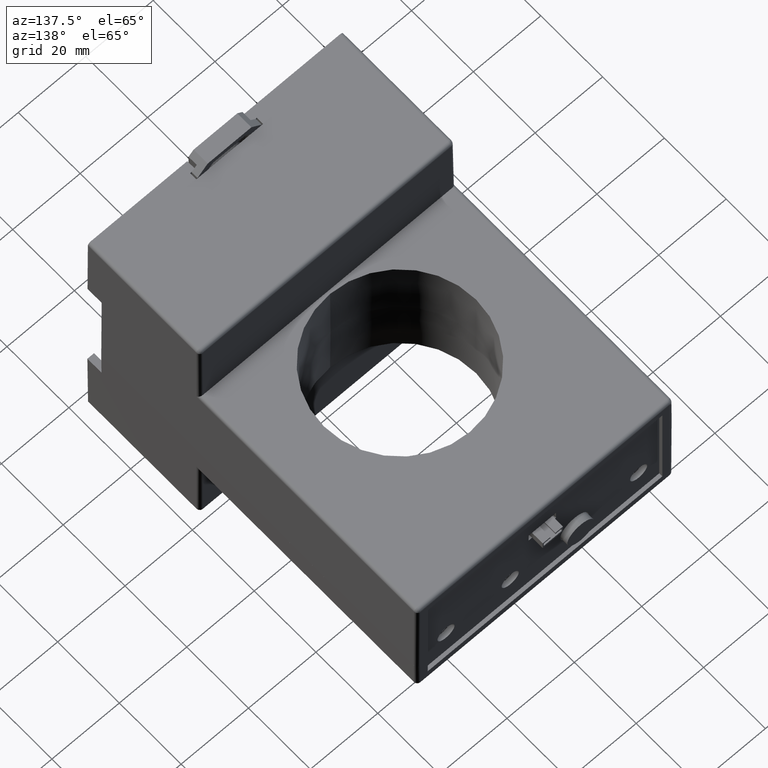
[diagram: clean part render]
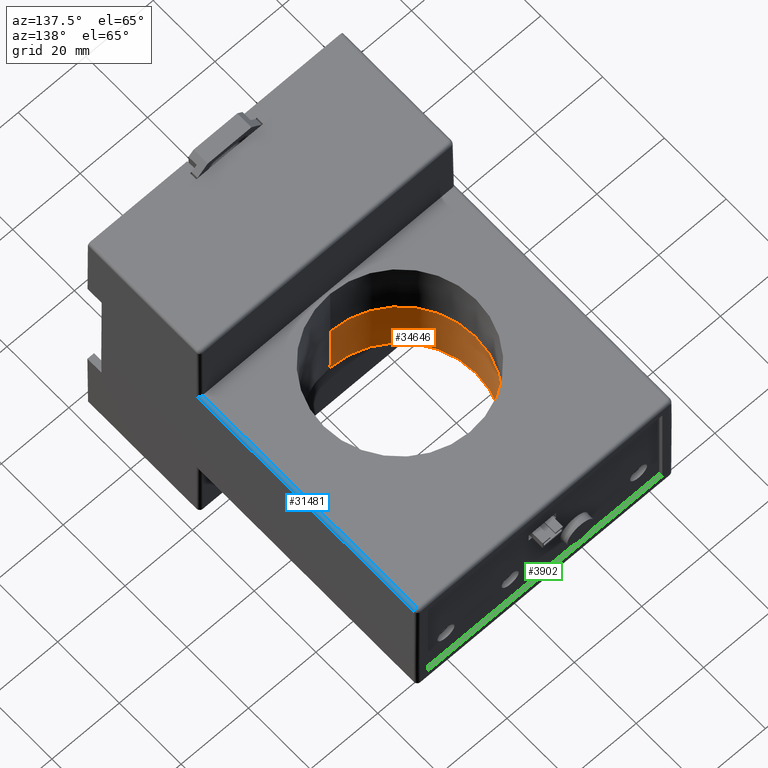
[diagram: same view with three faces highlighted in distinct colors, each labeled with its STEP entity id]
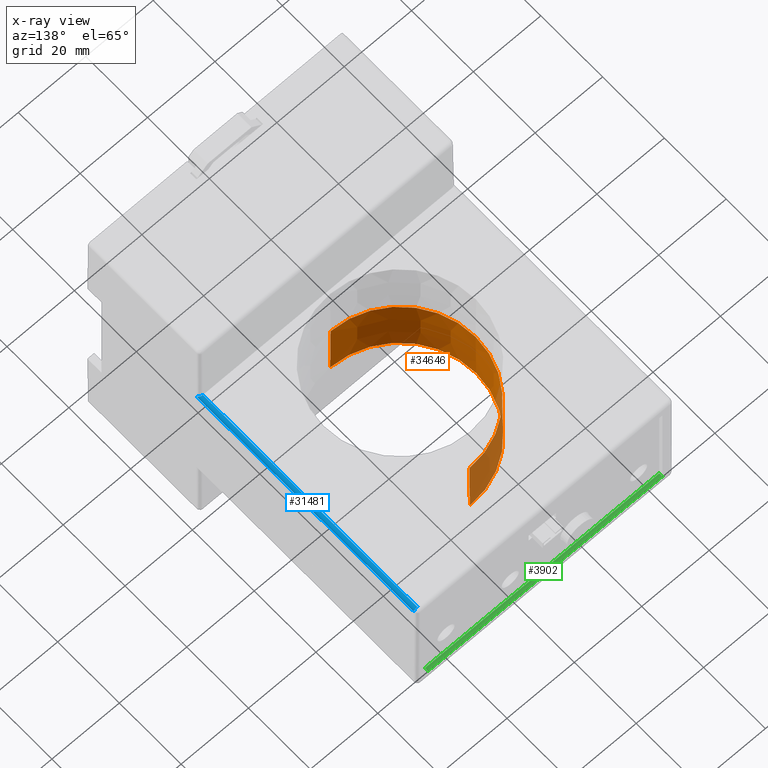
[diagram: x-ray of the same camera — body ghosted, the three highlighted faces saturated]
A machine part, auxiliary view with three faces highlighted in distinct colors.
The next image is the same camera in x-ray (body ghosted, the three faces saturated) — at least one of them is partly hidden behind the body in this view.
Their STEP definitions:

[orange] entity #34646 — the highlighted conical surface has half-angle 0.5 deg.
#1155 = FACE_OUTER_BOUND ( 'NONE', #7006, .T. ) ;
#1364 = AXIS2_PLACEMENT_3D ( 'NONE', #28387, #20750, #1743 ) ;
#1743 = DIRECTION ( 'NONE',  ( 0.000000000000000000, 1.000000000000000000, 0.000000000000000000 ) ) ;
#1891 = AXIS2_PLACEMENT_3D ( 'NONE', #9511, #22809, #23174 ) ;
#1937 = EDGE_CURVE ( 'NONE', #34089, #18362, #31605, .T. ) ;
#3881 = EDGE_CURVE ( 'NONE', #34089, #26544, #22416, .T. ) ;
#4968 = CARTESIAN_POINT ( 'NONE',  ( 0.001330692535681425289, 0.2375644801733747813, -0.7500000000000354161 ) ) ;
#6729 = DIRECTION ( 'NONE',  ( 1.068692402194675476E-18, -0.008726535707591374924, -0.9999619230623453259 ) ) ;
#7006 = EDGE_LOOP ( 'NONE', ( #13712, #27135, #22607, #33682 ) ) ;
#7108 = AXIS2_PLACEMENT_3D ( 'NONE', #15885, #19237, #21390 ) ;
#8750 = VECTOR ( 'NONE', #6729, 39.37007874015748854 ) ;
#9391 = LINE ( 'NONE', #31065, #8750 ) ;
#9511 = CARTESIAN_POINT ( 'NONE',  ( 0.001330692535681425289, -0.6462937878266260538, -0.7500000000000354161 ) ) ;
#13712 = ORIENTED_EDGE ( 'NONE', *, *, #3881, .T. ) ;
#15798 = DIRECTION ( 'NONE',  ( 0.000000000000000000, 0.008726535707591213595, -0.9999619230623453259 ) ) ;
#15885 = CARTESIAN_POINT ( 'NONE',  ( 0.001330692535681425289, -0.6462937878266260538, -0.7500000000000375255 ) ) ;
#16657 = VECTOR ( 'NONE', #15798, 39.37007874015748854 ) ;
#18362 = VERTEX_POINT ( 'NONE', #20366 ) ;
#18841 = CARTESIAN_POINT ( 'NONE',  ( 0.001330692535681425289, -1.530152055826625945, -0.7500000000000375255 ) ) ;
#19237 = DIRECTION ( 'NONE',  ( 0.000000000000000000, 1.545410668526019934E-16, 1.000000000000000000 ) ) ;
#20366 = CARTESIAN_POINT ( 'NONE',  ( 0.001330692535681425289, 0.2441096311733744195, -1.500000000000037526 ) ) ;
#20750 = DIRECTION ( 'NONE',  ( 0.000000000000000000, -7.670253548476839358E-17, -1.000000000000000000 ) ) ;
#21390 = DIRECTION ( 'NONE',  ( 0.000000000000000000, 1.000000000000000000, -1.545410668526021414E-16 ) ) ;
#22416 = CIRCLE ( 'NONE', #7108, 0.8838582680000001135 ) ;
#22607 = ORIENTED_EDGE ( 'NONE', *, *, #30024, .T. ) ;
#22809 = DIRECTION ( 'NONE',  ( 0.000000000000000000, -1.545410668526019934E-16, -1.000000000000000000 ) ) ;
#23174 = DIRECTION ( 'NONE',  ( 0.000000000000000000, 1.000000000000000000, -1.545410668526021414E-16 ) ) ;
#23255 = CARTESIAN_POINT ( 'NONE',  ( 0.001330692535681425289, -1.536697206826626250, -1.500000000000037526 ) ) ;
#23441 = CONICAL_SURFACE ( 'NONE', #1891, 0.8838582680000001135, 0.008726646469201513809 ) ;
#25162 = EDGE_CURVE ( 'NONE', #26544, #33391, #9391, .T. ) ;
#26544 = VERTEX_POINT ( 'NONE', #18841 ) ;
#27135 = ORIENTED_EDGE ( 'NONE', *, *, #25162, .T. ) ;
#27847 = CARTESIAN_POINT ( 'NONE',  ( 0.001330692535681425289, 0.2375644801733747813, -0.7500000000000375255 ) ) ;
#28387 = CARTESIAN_POINT ( 'NONE',  ( 0.001330692535681425289, -0.6462937878266260538, -1.500000000000037526 ) ) ;
#30024 = EDGE_CURVE ( 'NONE', #33391, #18362, #33697, .T. ) ;
#31065 = CARTESIAN_POINT ( 'NONE',  ( 0.001330692535681425289, -1.530152055826625945, -0.7500000000000354161 ) ) ;
#31605 = LINE ( 'NONE', #4968, #16657 ) ;
#33391 = VERTEX_POINT ( 'NONE', #23255 ) ;
#33682 = ORIENTED_EDGE ( 'NONE', *, *, #1937, .F. ) ;
#33697 = CIRCLE ( 'NONE', #1364, 0.8904034189999999738 ) ;
#34089 = VERTEX_POINT ( 'NONE', #27847 ) ;
#34646 = ADVANCED_FACE ( 'NONE', ( #1155 ), #23441, .F. ) ;

[blue] entity #31481 — the highlighted cylindrical surface (edge-blend (fillet) strip) has radius 1 mm, axis along (0, 1, 0).
#131 = CARTESIAN_POINT ( 'NONE',  ( 1.484444940856047834, 1.164336302024646663, -0.01092595249874168430 ) ) ;
#360 = ORIENTED_EDGE ( 'NONE', *, *, #18913, .T. ) ;
#367 = ORIENTED_EDGE ( 'NONE', *, *, #8223, .F. ) ;
#467 = CYLINDRICAL_SURFACE ( 'NONE', #12796, 0.03937007900000000227 ) ;
#485 = ORIENTED_EDGE ( 'NONE', *, *, #1388, .F. ) ;
#661 = CARTESIAN_POINT ( 'NONE',  ( 1.496593678547291528, 1.164336082172895637, -0.03919829190969988109 ) ) ;
#1034 = CARTESIAN_POINT ( 'NONE',  ( 1.496568194164836774, 1.164336082090621227, -0.03352269004800088187 ) ) ;
#1199 = CARTESIAN_POINT ( 'NONE',  ( 1.493732530525202717, 1.164336082997573518, -0.02463604005185262777 ) ) ;
#1365 = CARTESIAN_POINT ( 'NONE',  ( 1.493631023974575811, 1.164336096254789066, -0.02438621489670914078 ) ) ;
#1388 = EDGE_CURVE ( 'NONE', #20201, #3164, #12426, .T. ) ;
#2462 = CARTESIAN_POINT ( 'NONE',  ( 1.473332372030457194, 1.164335901163281006, -0.003402666639727246374 ) ) ;
#2796 = CARTESIAN_POINT ( 'NONE',  ( 1.457223255535681217, -1.624317908826625967, -0.03937007900001086164 ) ) ;
#3164 = VERTEX_POINT ( 'NONE', #30324 ) ;
#3175 = CARTESIAN_POINT ( 'NONE',  ( 1.464169413759737193, 1.164336365295956188, -0.0006174781700562674341 ) ) ;
#3252 = CARTESIAN_POINT ( 'NONE',  ( 1.485002436265358439, -1.580146867309736303, -0.01147163243199506022 ) ) ;
#3330 = VERTEX_POINT ( 'NONE', #22523 ) ;
#3420 = CARTESIAN_POINT ( 'NONE',  ( 1.476493194752162452, -1.573348139762933418, -0.004677798566891992055 ) ) ;
#3633 = VECTOR ( 'NONE', #11294, 39.37007874015748143 ) ;
#4006 = EDGE_CURVE ( 'NONE', #20201, #27351, #22013, .T. ) ;
#5138 = CARTESIAN_POINT ( 'NONE',  ( 1.463677681557393084, 1.164338849962114786, -0.0005318053292256911917 ) ) ;
#5379 = CARTESIAN_POINT ( 'NONE',  ( 1.492387291975863617, -1.590263892925139588, -0.02164219658270928603 ) ) ;
#5721 = CARTESIAN_POINT ( 'NONE',  ( 1.494781917686651473, -1.595630264915548491, -0.02704454284038275078 ) ) ;
#6183 = CARTESIAN_POINT ( 'NONE',  ( 1.457194806560365929, -0.6576589748279371150, -7.709014693006753181E-09 ) ) ;
#7968 = CARTESIAN_POINT ( 'NONE',  ( 1.468140588614240460, 1.164343922043954205, -0.001538683563074706544 ) ) ;
#8035 = CARTESIAN_POINT ( 'NONE',  ( 1.488156840219140298, -1.583553193721103591, -0.01488835899285428747 ) ) ;
#8131 = CARTESIAN_POINT ( 'NONE',  ( 1.483412060711580827, 1.164337723560614268, -0.009970658415837954647 ) ) ;
#8223 = EDGE_CURVE ( 'NONE', #31862, #3330, #8270, .T. ) ;
#8261 = CARTESIAN_POINT ( 'NONE',  ( 1.457180593343850417, -1.568655253667370131, 2.122863892547027749E-08 ) ) ;
#8270 = LINE ( 'NONE', #16592, #3633 ) ;
#8333 = CARTESIAN_POINT ( 'NONE',  ( 1.471297920332168774, 1.164336309284034643, -0.002601651153396351140 ) ) ;
#8566 = CARTESIAN_POINT ( 'NONE',  ( 1.467232212975850159, -1.569634801595313656, -0.0009681825622313167817 ) ) ;
#8657 = CARTESIAN_POINT ( 'NONE',  ( 1.464314858757750359, 1.164336102209431401, -0.0006439194034313916589 ) ) ;
#8844 = CARTESIAN_POINT ( 'NONE',  ( 1.495282912126592922, 1.164336049566649711, -0.02851357579597748465 ) ) ;
#9374 = CARTESIAN_POINT ( 'NONE',  ( 1.491127663774093337, 1.164337858732516384, -0.01930369316991986314 ) ) ;
#9673 = B_SPLINE_CURVE_WITH_KNOTS ( 'NONE', 3,
 ( #22164, #26977, #19172, #30004, #32997, #16653, #27489, #24651, #5138, #13661, #3175, #8657, #10664, #13815, #7968, #16336, #15966, #18809, #26793, #8333, #29639, #24471, #2462, #13510, #24319, #35163, #10826, #21639, #8131, #27158, #131, #10988, #21815, #32664, #27312, #30686, #33360, #9374, #22695, #33698, #25001, #33528, #1365, #1199, #8844, #1034, #661 ),
 .UNSPECIFIED., .F., .F.,
 ( 4, 2, 2, 2, 1, 2, 2, 2, 2, 1, 1, 2, 2, 2, 2, 2, 1, 1, 2, 2, 2, 2, 1, 1, 2, 2, 4 ),
 ( 0.000000000000000000, 0.06250000000001339207, 0.09375000000001249001, 0.1093750000000182354, 0.1171875000000210942, 0.1210937500000278666, 0.1250000000000346390, 0.1875000000000314471, 0.2187500000000298650, 0.2343750000000290601, 0.2421875000000286715, 0.2460937500000284772, 0.2500000000000282552, 0.3749999999999323319, 0.4374999999998844258, 0.4687499999998561151, 0.4843749999998458455, 0.4921874999998370748, 0.4960937499998326894, 0.4999999999998283040, 0.6249999999998372413, 0.6874999999998381295, 0.7187499999998412381, 0.7343749999998427924, 0.7421874999998436806, 0.7499999999998445688, 1.000000000000000000 ),
 .UNSPECIFIED. ) ;
#10664 = CARTESIAN_POINT ( 'NONE',  ( 1.465258436425645350, 1.164335763650295785, -0.0008181075057925150679 ) ) ;
#10826 = CARTESIAN_POINT ( 'NONE',  ( 1.481833284021740971, 1.164341277177371348, -0.008629853075344938451 ) ) ;
#10988 = CARTESIAN_POINT ( 'NONE',  ( 1.484683431391089936, 1.164336166238325365, -0.01115741913064214989 ) ) ;
#11068 = CARTESIAN_POINT ( 'NONE',  ( 1.493104402381204565, -1.591776753127178923, -0.02316590488884485641 ) ) ;
#11294 = DIRECTION ( 'NONE',  ( 0.000000000000000000, -1.000000000000000000, 0.000000000000000000 ) ) ;
#11413 = CARTESIAN_POINT ( 'NONE',  ( 1.481055440325588446, -1.576233271973137562, -0.007541565141152646069 ) ) ;
#12426 = B_SPLINE_CURVE_WITH_KNOTS ( 'NONE', 3,
 ( #30526, #6183, #28210, #16859 ),
 .UNSPECIFIED., .F., .F.,
 ( 4, 4 ),
 ( 1.321415185193150075E-06, 1.000000000000000000 ),
 .UNSPECIFIED. ) ;
#12796 = AXIS2_PLACEMENT_3D ( 'NONE', #2796, #30122, #16460 ) ;
#12817 = ORIENTED_EDGE ( 'NONE', *, *, #4006, .T. ) ;
#13083 = EDGE_CURVE ( 'NONE', #3164, #31862, #9673, .T. ) ;
#13510 = CARTESIAN_POINT ( 'NONE',  ( 1.475347506262966180, 1.164347809394013833, -0.004318343193038460745 ) ) ;
#13511 = EDGE_LOOP ( 'NONE', ( #29632, #485, #12817, #360, #367 ) ) ;
#13571 = CARTESIAN_POINT ( 'NONE',  ( 1.490291180145886241, -1.586615342699232212, -0.01796739175534824498 ) ) ;
#13661 = CARTESIAN_POINT ( 'NONE',  ( 1.463971504965505543, 1.164337170884090833, -0.0005825254059104340324 ) ) ;
#13815 = CARTESIAN_POINT ( 'NONE',  ( 1.466310275670424046, 1.164343701896781047, -0.001042183614834326809 ) ) ;
#14082 = CARTESIAN_POINT ( 'NONE',  ( 1.492894277748572751, -1.591317345333462807, -0.02270330650370533734 ) ) ;
#15966 = CARTESIAN_POINT ( 'NONE',  ( 1.469830920037761501, 1.164339613599384426, -0.002071519253975040182 ) ) ;
#16223 = CARTESIAN_POINT ( 'NONE',  ( 1.486606436149681576, -1.581737274033285789, -0.01306883046222464227 ) ) ;
#16336 = CARTESIAN_POINT ( 'NONE',  ( 1.468792468772047055, 1.164342522204183661, -0.001731174721391769275 ) ) ;
#16460 = DIRECTION ( 'NONE',  ( -6.938893858110528570E-15, 0.000000000000000000, -1.000000000000000000 ) ) ;
#16592 = CARTESIAN_POINT ( 'NONE',  ( 1.496592959168775439, -0.9034885178266259809, -0.03919829468800295480 ) ) ;
#16653 = CARTESIAN_POINT ( 'NONE',  ( 1.462480213282318697, 1.164350987327279929, -0.0003510526486788086652 ) ) ;
#16747 = CARTESIAN_POINT ( 'NONE',  ( 1.462169781860694462, -1.568670453387173591, 5.383265063202990374E-06 ) ) ;
#16859 = CARTESIAN_POINT ( 'NONE',  ( 1.457223255261008044, 1.164336082238254022, -8.780214088596811020E-11 ) ) ;
#18809 = CARTESIAN_POINT ( 'NONE',  ( 1.470365272563824766, 1.164338004012003491, -0.002254617985095569779 ) ) ;
#18913 = EDGE_CURVE ( 'NONE', #27351, #3330, #33033, .T. ) ;
#19172 = CARTESIAN_POINT ( 'NONE',  ( 1.459169575941745789, 1.164337722414892529, -3.215656258399416262E-05 ) ) ;
#19574 = CARTESIAN_POINT ( 'NONE',  ( 1.490970520294329971, -1.587692437266342349, -0.01905175382725271885 ) ) ;
#20201 = VERTEX_POINT ( 'NONE', #8261 ) ;
#21639 = CARTESIAN_POINT ( 'NONE',  ( 1.482462375198591920, 1.164339663350864695, -0.009142683695595624910 ) ) ;
#21815 = CARTESIAN_POINT ( 'NONE',  ( 1.484842395458790598, 1.164336103028245528, -0.01131302027017613496 ) ) ;
#21897 = CARTESIAN_POINT ( 'NONE',  ( 1.493334981465455069, -1.592294375669335516, -0.02368701026072725715 ) ) ;
#22013 = B_SPLINE_CURVE_WITH_KNOTS ( 'NONE', 3,
 ( #33068, #16747, #8566, #3420, #11413, #22230 ),
 .UNSPECIFIED., .F., .F.,
 ( 4, 2, 4 ),
 ( 0.000000000000000000, 0.5000000000000000000, 1.000000000000000000 ),
 .UNSPECIFIED. ) ;
#22164 = CARTESIAN_POINT ( 'NONE',  ( 1.457223255261008044, 1.164336082238254022, -8.780214088596811020E-11 ) ) ;
#22230 = CARTESIAN_POINT ( 'NONE',  ( 1.485002436265358439, -1.580146867309736303, -0.01147163243199506022 ) ) ;
#22523 = CARTESIAN_POINT ( 'NONE',  ( 1.496592087636614110, -1.607685777358805135, -0.03919829871860153192 ) ) ;
#22695 = CARTESIAN_POINT ( 'NONE',  ( 1.492180237719931357, 1.164337046839520218, -0.02124402399814831824 ) ) ;
#24319 = CARTESIAN_POINT ( 'NONE',  ( 1.478768020175549314, 1.164347901671580754, -0.006391245212084641775 ) ) ;
#24471 = CARTESIAN_POINT ( 'NONE',  ( 1.471628515517873881, 1.164336087910295969, -0.002730010109602866008 ) ) ;
#24651 = CARTESIAN_POINT ( 'NONE',  ( 1.463392968122608329, 1.164341479879629215, -0.0004859814918897872784 ) ) ;
#24904 = CARTESIAN_POINT ( 'NONE',  ( 1.496562329060563634, -1.600727036294399941, -0.03217831075050450740 ) ) ;
#25001 = CARTESIAN_POINT ( 'NONE',  ( 1.493248868338005186, 1.164336232438409002, -0.02348217840189761527 ) ) ;
#26225 = CARTESIAN_POINT ( 'NONE',  ( 1.485002436265358439, -1.580146867309736303, -0.01147163243199506022 ) ) ;
#26793 = CARTESIAN_POINT ( 'NONE',  ( 1.471014353651835194, 1.164336656061969455, -0.002493534695558339599 ) ) ;
#26977 = CARTESIAN_POINT ( 'NONE',  ( 1.458192111147310843, 1.164336424206825482, -4.567141000888969781E-10 ) ) ;
#27052 = CARTESIAN_POINT ( 'NONE',  ( 1.496592087636614110, -1.607685777358805135, -0.03919829871860153192 ) ) ;
#27073 = CARTESIAN_POINT ( 'NONE',  ( 1.496593678547291528, 1.164336082172895637, -0.03919829190969988109 ) ) ;
#27158 = CARTESIAN_POINT ( 'NONE',  ( 1.483888395109060676, 1.164336878052493862, -0.01039931844659884932 ) ) ;
#27220 = CARTESIAN_POINT ( 'NONE',  ( 1.493242851598405974, -1.592084786809689678, -0.02347603429599900288 ) ) ;
#27312 = CARTESIAN_POINT ( 'NONE',  ( 1.486504075081615195, 1.164336026264555235, -0.01296678958549814416 ) ) ;
#27351 = VERTEX_POINT ( 'NONE', #26225 ) ;
#27489 = CARTESIAN_POINT ( 'NONE',  ( 1.462835632459535296, 1.164347013865487002, -0.0004002762344872486566 ) ) ;
#28210 = CARTESIAN_POINT ( 'NONE',  ( 1.457209031056098336, 0.2533385536727173482, -6.829619984160649566E-15 ) ) ;
#29632 = ORIENTED_EDGE ( 'NONE', *, *, #13083, .F. ) ;
#29639 = CARTESIAN_POINT ( 'NONE',  ( 1.471488149110296018, 1.164336143288523973, -0.002675034558236506679 ) ) ;
#29711 = CARTESIAN_POINT ( 'NONE',  ( 1.491925686799903783, -1.589392646478607674, -0.02076439011648212665 ) ) ;
#30004 = CARTESIAN_POINT ( 'NONE',  ( 1.460846246940382454, 1.164357464308185319, -0.0001630532174326378386 ) ) ;
#30122 = DIRECTION ( 'NONE',  ( 0.000000000000000000, 1.000000000000000000, 0.000000000000000000 ) ) ;
#30324 = CARTESIAN_POINT ( 'NONE',  ( 1.457223255261008044, 1.164336082238254022, -8.780214088596811020E-11 ) ) ;
#30526 = CARTESIAN_POINT ( 'NONE',  ( 1.457180593343850417, -1.568655253667370131, 2.122863892547027749E-08 ) ) ;
#30686 = CARTESIAN_POINT ( 'NONE',  ( 1.488096004389228177, 1.164338215945144084, -0.01479207996357708929 ) ) ;
#31481 = ADVANCED_FACE ( 'NONE', ( #32621 ), #467, .T. ) ;
#31862 = VERTEX_POINT ( 'NONE', #27073 ) ;
#32621 = FACE_OUTER_BOUND ( 'NONE', #13511, .T. ) ;
#32664 = CARTESIAN_POINT ( 'NONE',  ( 1.484954341796474786, 1.164336083866912119, -0.01142380356697737277 ) ) ;
#32997 = CARTESIAN_POINT ( 'NONE',  ( 1.461461445694123285, 1.164358803071727566, -0.0002228065801303327504 ) ) ;
#33033 = B_SPLINE_CURVE_WITH_KNOTS ( 'NONE', 3,
 ( #3252, #16223, #8035, #13571, #19574, #29711, #5379, #14082, #11068, #27220, #21897, #5721, #24904, #27052 ),
 .UNSPECIFIED., .F., .F.,
 ( 4, 2, 2, 1, 1, 2, 2, 4 ),
 ( 0.000000000000000000, 0.2499999999999545919, 0.3749999999999318878, 0.4374999999999205080, 0.4687499999999148459, 0.4843749999999119038, 0.4999999999999089617, 1.000000000000000000 ),
 .UNSPECIFIED. ) ;
#33068 = CARTESIAN_POINT ( 'NONE',  ( 1.457180593343850417, -1.568655253667370131, 2.122863892547027749E-08 ) ) ;
#33360 = CARTESIAN_POINT ( 'NONE',  ( 1.490383179985958373, 1.164338256390982318, -0.01810454674448271073 ) ) ;
#33528 = CARTESIAN_POINT ( 'NONE',  ( 1.493479397014053189, 1.164336139796309233, -0.02402296228519383917 ) ) ;
#33698 = CARTESIAN_POINT ( 'NONE',  ( 1.492690421932249434, 1.164336600328926163, -0.02224944349140584379 ) ) ;
#35163 = CARTESIAN_POINT ( 'NONE',  ( 1.479972475108672914, 1.164345700549807683, -0.007199847623886168960 ) ) ;

[green] entity #3902 — the highlighted planar face has unit normal (0, 0, -1).
#1018 = LINE ( 'NONE', #9700, #6543 ) ;
#2813 = VERTEX_POINT ( 'NONE', #15875 ) ;
#3902 = ADVANCED_FACE ( 'NONE', ( #10901 ), #8405, .F. ) ;
#4348 = CARTESIAN_POINT ( 'NONE',  ( 0.001335336535681159488, 1.203706212173374146, -1.369999999229100540 ) ) ;
#5271 = LINE ( 'NONE', #5636, #31341 ) ;
#5508 = VECTOR ( 'NONE', #26010, 39.37007874015748143 ) ;
#5636 = CARTESIAN_POINT ( 'NONE',  ( 1.371330693535681045, 1.183706212173373906, -1.370000000000035634 ) ) ;
#5797 = EDGE_CURVE ( 'NONE', #2813, #16852, #5271, .T. ) ;
#5847 = ORIENTED_EDGE ( 'NONE', *, *, #31491, .F. ) ;
#6543 = VECTOR ( 'NONE', #33675, 39.37007874015748143 ) ;
#8093 = CARTESIAN_POINT ( 'NONE',  ( 0.001330692535681425289, 1.163706212173374110, -1.370000000000035634 ) ) ;
#8405 = PLANE ( 'NONE',  #16190 ) ;
#9700 = CARTESIAN_POINT ( 'NONE',  ( -1.368669307464319029, 1.183706212173373906, -1.370000000000035634 ) ) ;
#9732 = ORIENTED_EDGE ( 'NONE', *, *, #5797, .F. ) ;
#9917 = CARTESIAN_POINT ( 'NONE',  ( 1.371330693202346351, 1.163706212173374110, -1.370000000000035634 ) ) ;
#10538 = ORIENTED_EDGE ( 'NONE', *, *, #11727, .T. ) ;
#10901 = FACE_OUTER_BOUND ( 'NONE', #18639, .T. ) ;
#11727 = EDGE_CURVE ( 'NONE', #2813, #27096, #34547, .T. ) ;
#13928 = CARTESIAN_POINT ( 'NONE',  ( -1.368669307797649726, 1.163706212173374110, -1.370000000000035634 ) ) ;
#15875 = CARTESIAN_POINT ( 'NONE',  ( 1.371330693647791144, 1.203706212173374146, -1.369999999486078979 ) ) ;
#16190 = AXIS2_PLACEMENT_3D ( 'NONE', #24741, #30070, #21909 ) ;
#16852 = VERTEX_POINT ( 'NONE', #9917 ) ;
#17134 = EDGE_CURVE ( 'NONE', #27096, #24180, #1018, .T. ) ;
#18639 = EDGE_LOOP ( 'NONE', ( #25821, #5847, #9732, #10538 ) ) ;
#21641 = CARTESIAN_POINT ( 'NONE',  ( -1.368669308757287428, 1.203706212173374146, -1.369999999486078979 ) ) ;
#21909 = DIRECTION ( 'NONE',  ( 0.000000000000000000, -1.000000000000000000, 0.000000000000000000 ) ) ;
#24180 = VERTEX_POINT ( 'NONE', #13928 ) ;
#24741 = CARTESIAN_POINT ( 'NONE',  ( 1.371330693535681045, 1.163706212173374110, -1.370000000000035634 ) ) ;
#25821 = ORIENTED_EDGE ( 'NONE', *, *, #17134, .T. ) ;
#26010 = DIRECTION ( 'NONE',  ( -1.000000000000000000, 0.000000000000000000, 0.000000000000000000 ) ) ;
#27096 = VERTEX_POINT ( 'NONE', #21641 ) ;
#30070 = DIRECTION ( 'NONE',  ( 0.000000000000000000, 0.000000000000000000, -1.000000000000000000 ) ) ;
#30378 = VECTOR ( 'NONE', #32957, 39.37007874015748143 ) ;
#31341 = VECTOR ( 'NONE', #35131, 39.37007874015748143 ) ;
#31491 = EDGE_CURVE ( 'NONE', #16852, #24180, #32804, .T. ) ;
#32804 = LINE ( 'NONE', #8093, #30378 ) ;
#32957 = DIRECTION ( 'NONE',  ( -1.000000000000000000, 0.000000000000000000, 0.000000000000000000 ) ) ;
#33675 = DIRECTION ( 'NONE',  ( 0.000000000000000000, -1.000000000000000000, 0.000000000000000000 ) ) ;
#34547 = LINE ( 'NONE', #4348, #5508 ) ;
#35131 = DIRECTION ( 'NONE',  ( 0.000000000000000000, -1.000000000000000000, 0.000000000000000000 ) ) ;